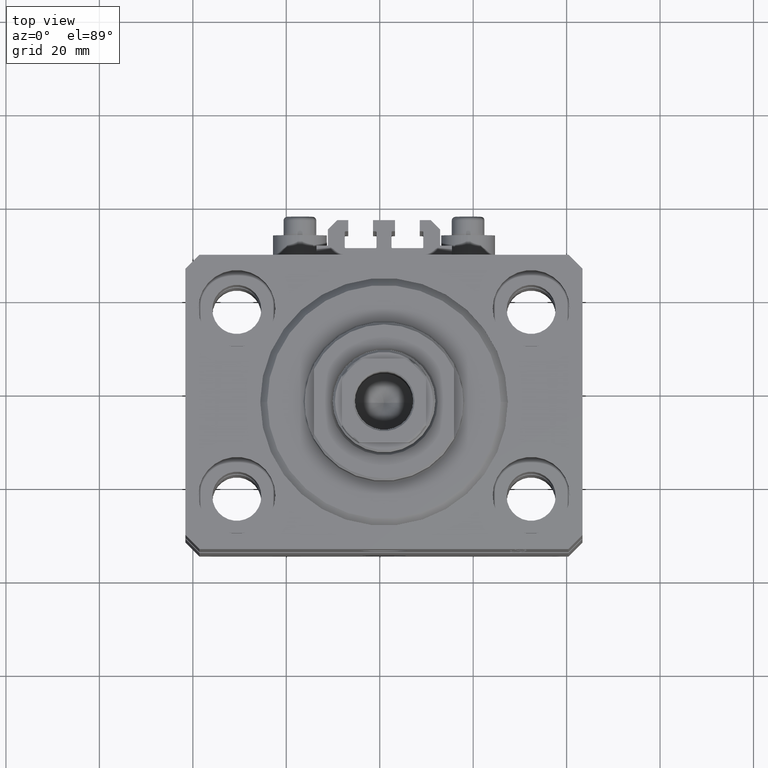
[diagram: clean part render]
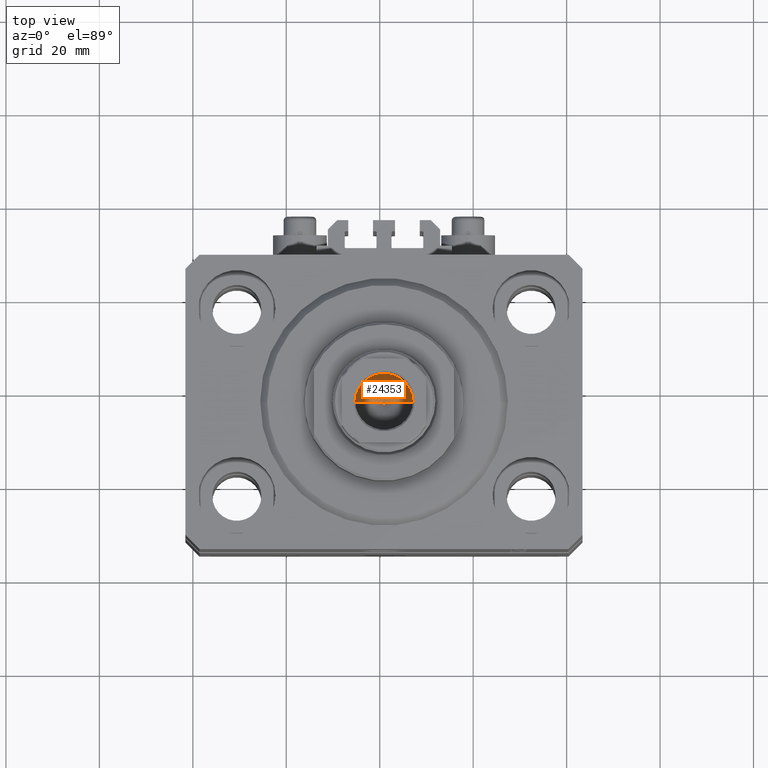
[diagram: same view with one face highlighted and labeled with its STEP entity id]
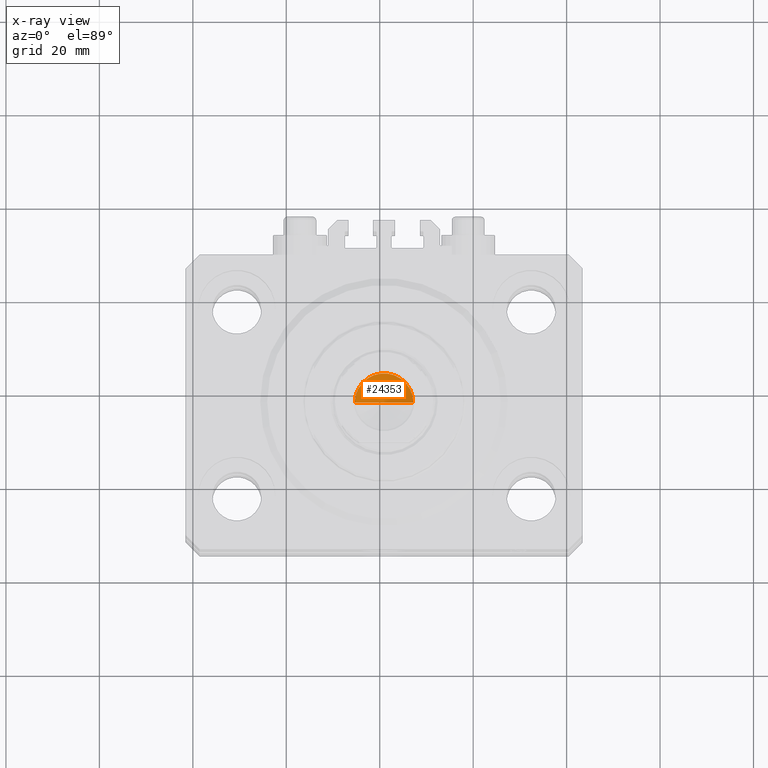
[diagram: x-ray of the same camera — body ghosted, the highlighted face saturated]
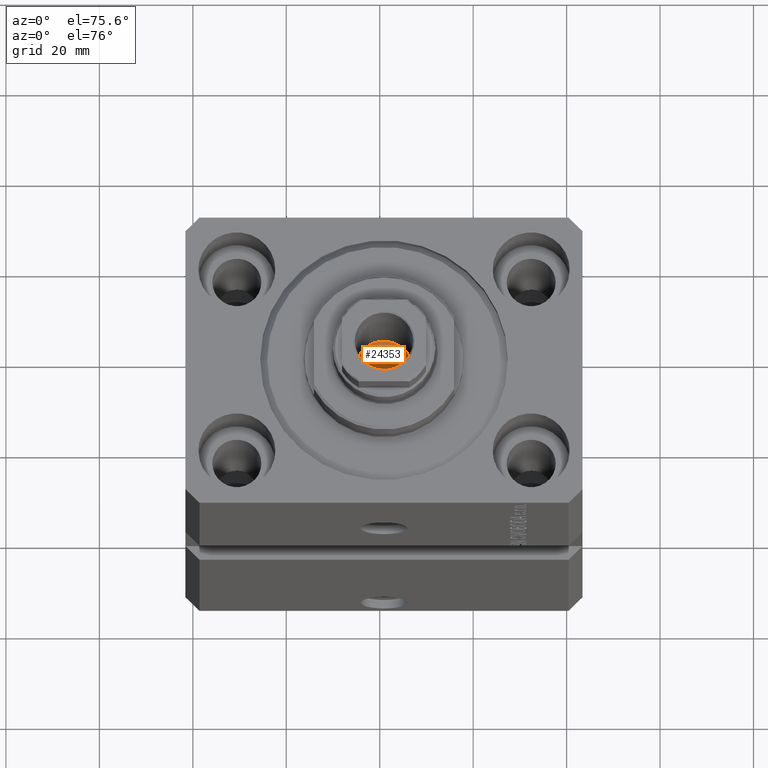
[diagram: same view with one face highlighted and labeled with its STEP entity id]
A machine part, top view. The second image highlights one B-rep face of the part: STEP entity #24353.
The next image is the same camera in x-ray: the body ghosted, the highlighted face saturated — about 0% of this face is hidden behind the body in this view.
A second angle (auxiliary view) of the same face is appended — the face is thin or edge-on in the first view.
In plain terms, the highlighted conical surface has half-angle 59 deg.
Its self-contained STEP definition (entity closure, byte-faithful):
#1938 = CARTESIAN_POINT ( 'NONE',  ( -7.434177670704979810E-15, 0.000000000000000000, 69.84462113107775849 ) ) ;
#5623 = CARTESIAN_POINT ( 'NONE',  ( -6.249999999999993783, 7.654042494670949718E-16, 73.59999999999999432 ) ) ;
#6460 = CARTESIAN_POINT ( 'NONE',  ( 6.249999999999993783, 0.000000000000000000, 73.59999999999999432 ) ) ;
#6567 = DIRECTION ( 'NONE',  ( 1.000000000000000000, 0.000000000000000000, 0.000000000000000000 ) ) ;
#6945 = ORIENTED_EDGE ( 'NONE', *, *, #41202, .T. ) ;
#7435 = EDGE_LOOP ( 'NONE', ( #47539, #16901, #6945 ) ) ;
#7889 = EDGE_CURVE ( 'NONE', #27849, #36526, #33609, .T. ) ;
#10721 = CARTESIAN_POINT ( 'NONE',  ( -6.249999999999993783, 7.654042494670949718E-16, 73.59999999999999432 ) ) ;
#10946 = CARTESIAN_POINT ( 'NONE',  ( 0.000000000000000000, 0.000000000000000000, 73.59999999999999432 ) ) ;
#11412 = FACE_OUTER_BOUND ( 'NONE', #7435, .T. ) ;
#15063 = DIRECTION ( 'NONE',  ( -0.000000000000000000, -0.000000000000000000, 1.000000000000000000 ) ) ;
#16809 = VERTEX_POINT ( 'NONE', #31609 ) ;
#16901 = ORIENTED_EDGE ( 'NONE', *, *, #44891, .T. ) ;
#16993 = CIRCLE ( 'NONE', #47292, 6.249999999999993783 ) ;
#17647 = DIRECTION ( 'NONE',  ( 0.8571673007021122226, 0.000000000000000000, 0.5150380749100541555 ) ) ;
#21503 = CONICAL_SURFACE ( 'NONE', #40135, 6.249999999999993783, 1.029744258676654534 ) ;
#24353 = ADVANCED_FACE ( 'NONE', ( #11412 ), #21503, .F. ) ;
#24957 = LINE ( 'NONE', #6460, #35760 ) ;
#26498 = CARTESIAN_POINT ( 'NONE',  ( 0.000000000000000000, 0.000000000000000000, 73.59999999999999432 ) ) ;
#27763 = DIRECTION ( 'NONE',  ( -0.8571673007021122226, 1.049727191138618696E-16, 0.5150380749100541555 ) ) ;
#27849 = VERTEX_POINT ( 'NONE', #1938 ) ;
#31609 = CARTESIAN_POINT ( 'NONE',  ( 6.249999999999993783, 0.000000000000000000, 73.59999999999999432 ) ) ;
#33189 = VECTOR ( 'NONE', #27763, 1000.000000000000114 ) ;
#33609 = LINE ( 'NONE', #5623, #33189 ) ;
#35760 = VECTOR ( 'NONE', #17647, 1000.000000000000114 ) ;
#36471 = DIRECTION ( 'NONE',  ( -0.000000000000000000, -0.000000000000000000, 1.000000000000000000 ) ) ;
#36526 = VERTEX_POINT ( 'NONE', #10721 ) ;
#40135 = AXIS2_PLACEMENT_3D ( 'NONE', #26498, #15063, #41803 ) ;
#41202 = EDGE_CURVE ( 'NONE', #16809, #36526, #16993, .T. ) ;
#41803 = DIRECTION ( 'NONE',  ( 1.000000000000000000, 0.000000000000000000, 0.000000000000000000 ) ) ;
#44891 = EDGE_CURVE ( 'NONE', #27849, #16809, #24957, .T. ) ;
#47292 = AXIS2_PLACEMENT_3D ( 'NONE', #10946, #36471, #6567 ) ;
#47539 = ORIENTED_EDGE ( 'NONE', *, *, #7889, .F. ) ;